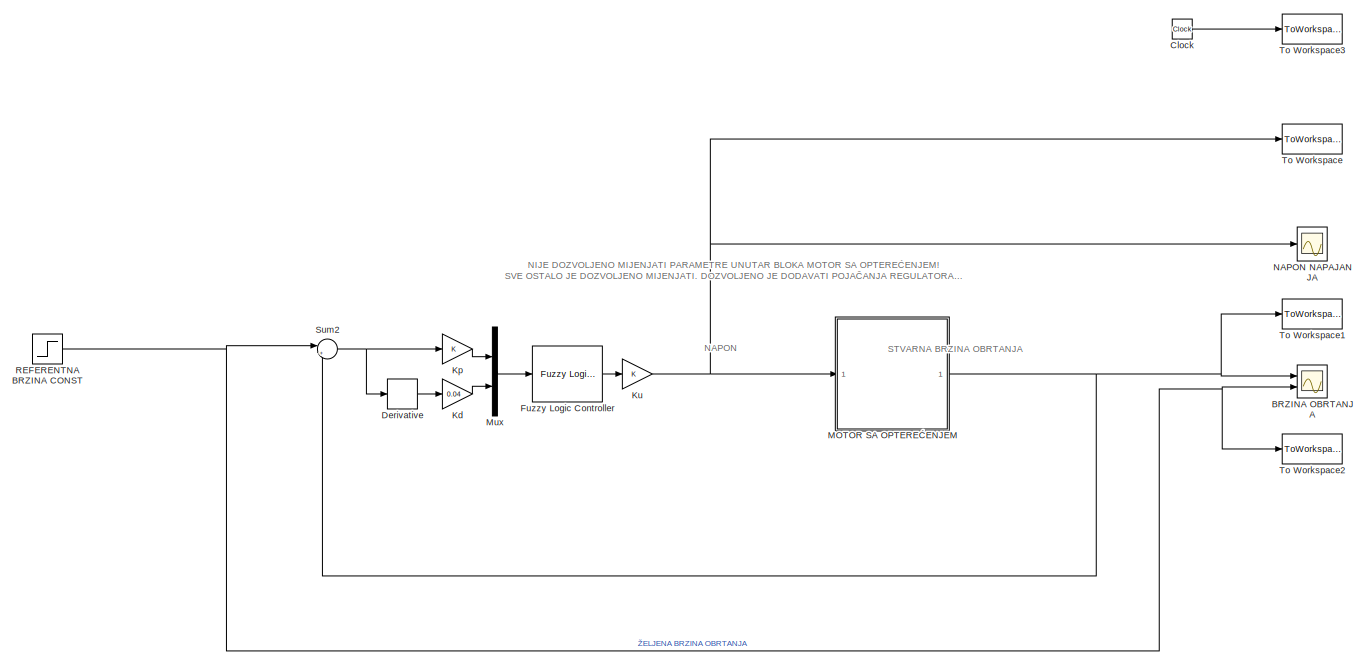
[diagram: root canvas - part 1/2, most of the canvas]
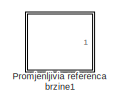
[diagram: root canvas - part 2/2, top left region]
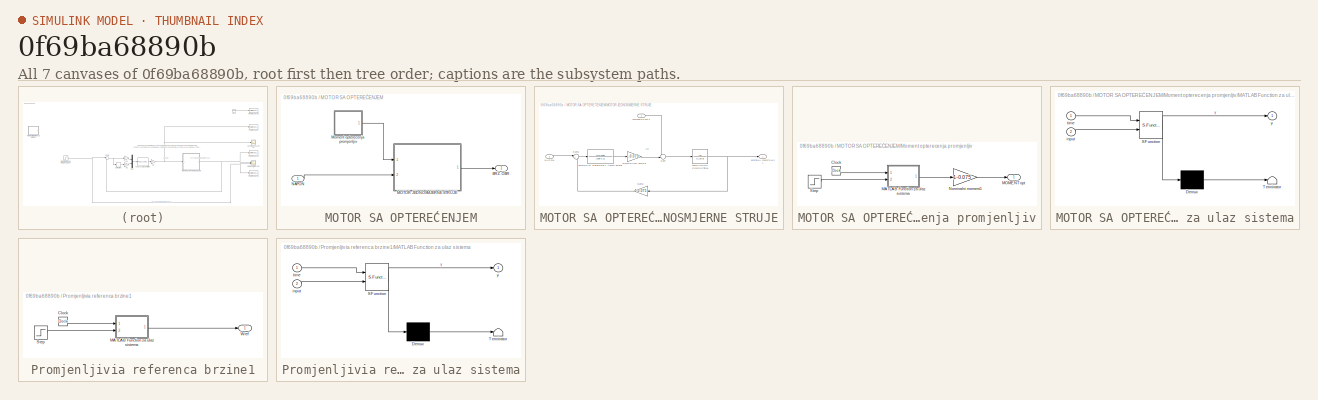
[diagram: thumbnail index - all 7 canvases of the model, root first then tree order]
MODEL slx_0f69ba68890b
KIND model
CONFIG AbsTol = auto
CONFIG EnableMultiTasking = off
CONFIG FixedStep = auto
CONFIG MaxStep = auto
CONFIG MinStep = auto
CONFIG RelTol = 1e-3
CONFIG SampleTimeConstraint = Unconstrained
CONFIG Solver = ode45
CONFIG SolverName = ode45
CONFIG StartTime = 0.0
CONFIG StopTime = 10.0
BLOCK [Scope] BRZINA OBRTANJA
  Floating = off
  NumInputPorts = 2
  Ports = [2]
  ScopeSpecificationString = Simulink.scopes.TimeScopeBlockCfg('CurrentConfiguration', extmgr.ConfigurationSet(extmgr.Configuration('Core','General UI',true),extmgr.Configuration('Core','Source UI',true),extmgr.Configuration('Sources','WiredSimulink',true,'DataLoggingSaveFormat','StructureWithTime','DataLoggingDecimation','1','DataLoggingDecimateData',true),extmgr.Configuration('Visuals','Time Domain',true,'SerializedDisplays...<+2212ch>
BLOCK [Clock] Clock
BLOCK [Derivative] Derivative
BLOCK [Reference] Fuzzy Logic Controller  REF=fuzblock/Fuzzy Logic   (lib defined in mdl_858b3b3e7478)
Controller
  Ports = [1, 1]
  SourceBlock = fuzblock/Fuzzy Logic \nController
  SourceProductBaseCode = FL
  SourceProductName = Fuzzy Logic Toolbox
  SourceType = Fuzzy Inference System
BLOCK [Gain] Kd
  Gain = 0.04
  OutDataTypeStr = Inherit: Inherit via internal rule
  ParamDataTypeStr = Inherit: Inherit via internal rule
  SaturateOnIntegerOverflow = off
BLOCK [Gain] Kp
  OutDataTypeStr = Inherit: Inherit via internal rule
  ParamDataTypeStr = Inherit: Inherit via internal rule
  SaturateOnIntegerOverflow = off
BLOCK [Gain] Ku
  OutDataTypeStr = Inherit: Inherit via internal rule
  ParamDataTypeStr = Inherit: Inherit via internal rule
  SaturateOnIntegerOverflow = off
BLOCK [SubSystem] MOTOR SA OPTEREĆENJEM
  Ports = [1, 1]
  RequestExecContextInheritance = off
BLOCK [Outport] MOTOR SA OPTEREĆENJEM/BRZ. OBR.
  IconDisplay = Port number
BLOCK [SubSystem] MOTOR SA OPTEREĆENJEM/MOTOR JEDNOSMJERNE STRUJE
  Ports = [2, 1]
  RequestExecContextInheritance = off
BLOCK [Outport] MOTOR SA OPTEREĆENJEM/MOTOR JEDNOSMJERNE STRUJE/BRZINA OBRTANJA
  IconDisplay = Port number
BLOCK [TransferFcn] MOTOR SA OPTEREĆENJEM/MOTOR JEDNOSMJERNE STRUJE/FUNKCIJA PRENOSA ARMATURE
  Denominator = [30e-3 1]
  Numerator = [1/0.075]
BLOCK [Gain] MOTOR SA OPTEREĆENJEM/MOTOR JEDNOSMJERNE STRUJE/Gain1
  Gain = 1-0.075
  OutDataTypeStr = Inherit: Inherit via internal rule
  ParamDataTypeStr = Inherit: Inherit via internal rule
  SaturateOnIntegerOverflow = off
BLOCK [TransferFcn] MOTOR SA OPTEREĆENJEM/MOTOR JEDNOSMJERNE STRUJE/MEHANICKI PODSISTEM
  Denominator = [1.29 0]
BLOCK [Inport] MOTOR SA OPTEREĆENJEM/MOTOR JEDNOSMJERNE STRUJE/MOMENT OPT
  IconDisplay = Port number
BLOCK [Inport] MOTOR SA OPTEREĆENJEM/MOTOR JEDNOSMJERNE STRUJE/NAPON
  IconDisplay = Port number
  Port = 2
BLOCK [Gain] MOTOR SA OPTEREĆENJEM/MOTOR JEDNOSMJERNE STRUJE/NOMINALNI FLUKS
  Gain = 1-0.075
  OutDataTypeStr = Inherit: Inherit via internal rule
  ParamDataTypeStr = Inherit: Inherit via internal rule
  SaturateOnIntegerOverflow = off
BLOCK [Sum] MOTOR SA OPTEREĆENJEM/MOTOR JEDNOSMJERNE STRUJE/Sum
  IconShape = round
  InputSameDT = off
  Inputs = -+|
  OutDataTypeStr = Inherit: Inherit via internal rule
  Ports = [2, 1]
  SaturateOnIntegerOverflow = off
BLOCK [Sum] MOTOR SA OPTEREĆENJEM/MOTOR JEDNOSMJERNE STRUJE/Sum1
  IconShape = round
  InputSameDT = off
  Inputs = |+-
  OutDataTypeStr = Inherit: Inherit via internal rule
  Ports = [2, 1]
  SaturateOnIntegerOverflow = off
BLOCK [SubSystem] MOTOR SA OPTEREĆENJEM/Moment opterecenja promjenljiv
  Ports = [0, 1]
  RequestExecContextInheritance = off
BLOCK [Clock] MOTOR SA OPTEREĆENJEM/Moment opterecenja promjenljiv/Clock
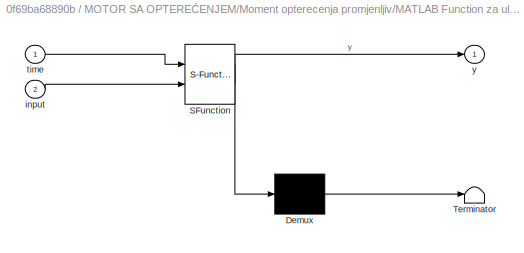
BLOCK [SubSystem] MOTOR SA OPTEREĆENJEM/Moment opterecenja promjenljiv/MATLAB Function za ulaz sistema
  ErrorFcn = Stateflow.Translate.translate
  PermitHierarchicalResolution = ExplicitOnly
  Ports = [2, 1]
  RequestExecContextInheritance = off
  SFBlockType = MATLAB Function
  TreatAsAtomicUnit = on
BLOCK [Demux] MOTOR SA OPTEREĆENJEM/Moment opterecenja promjenljiv/MATLAB Function za ulaz sistema/ Demux 
  Outputs = 1
  Ports = [1, 1]
BLOCK [S-Function] MOTOR SA OPTEREĆENJEM/Moment opterecenja promjenljiv/MATLAB Function za ulaz sistema/ SFunction 
  EnableBusSupport = on
  FunctionName = sf_sfun
  PortCounts = [2 2]
  Ports = [2, 2]
  SFcnIsStateOwnerBlock = off
  SFunctionDeploymentMode = off
  Tag = Stateflow S-Function simulacija 4
BLOCK [Terminator] MOTOR SA OPTEREĆENJEM/Moment opterecenja promjenljiv/MATLAB Function za ulaz sistema/ Terminator 
BLOCK [Inport] MOTOR SA OPTEREĆENJEM/Moment opterecenja promjenljiv/MATLAB Function za ulaz sistema/input
  IconDisplay = Port number
  Port = 2
BLOCK [Inport] MOTOR SA OPTEREĆENJEM/Moment opterecenja promjenljiv/MATLAB Function za ulaz sistema/time
  IconDisplay = Port number
BLOCK [Outport] MOTOR SA OPTEREĆENJEM/Moment opterecenja promjenljiv/MATLAB Function za ulaz sistema/y
  IconDisplay = Port number
BLOCK [Outport] MOTOR SA OPTEREĆENJEM/Moment opterecenja promjenljiv/MOMENT opt
  IconDisplay = Port number
BLOCK [Gain] MOTOR SA OPTEREĆENJEM/Moment opterecenja promjenljiv/Nominalni moment1
  Gain = 1-0.075
  OutDataTypeStr = Inherit: Inherit via internal rule
  ParamDataTypeStr = Inherit: Inherit via internal rule
  SaturateOnIntegerOverflow = off
BLOCK [Step] MOTOR SA OPTEREĆENJEM/Moment opterecenja promjenljiv/Step
  SampleTime = 0
  Time = 0
BLOCK [Inport] MOTOR SA OPTEREĆENJEM/NAPON
  IconDisplay = Port number
BLOCK [Mux] Mux
  DisplayOption = bar
  Inputs = 2
  Ports = [2, 1]
BLOCK [Scope] NAPON NAPAJANJA
  Floating = off
  NumInputPorts = 1
  Ports = [1]
  ScopeSpecificationString = Simulink.scopes.TimeScopeBlockCfg('CurrentConfiguration', extmgr.ConfigurationSet(extmgr.Configuration('Core','General UI',true,'FigureColor',[0.156862745098039 0.156862745098039 0.156862745098039]),extmgr.Configuration('Core','Source UI',true),extmgr.Configuration('Sources','WiredSimulink',true,'DataLoggingVariableName','ScopeData1','DataLoggingSaveFormat','StructureWithTime','DataLoggingDecimati...<+3122ch>
BLOCK [SubSystem] Promjenljivia referenca brzine1
  Ports = [0, 1]
  RequestExecContextInheritance = off
BLOCK [Clock] Promjenljivia referenca brzine1/Clock
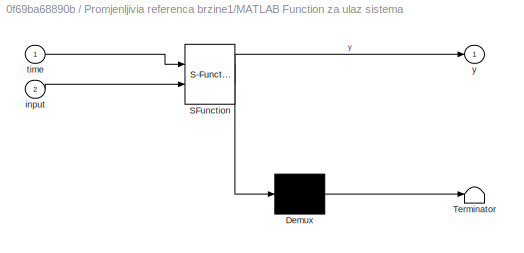
BLOCK [SubSystem] Promjenljivia referenca brzine1/MATLAB Function za ulaz sistema
  ErrorFcn = Stateflow.Translate.translate
  PermitHierarchicalResolution = ExplicitOnly
  Ports = [2, 1]
  RequestExecContextInheritance = off
  SFBlockType = MATLAB Function
  TreatAsAtomicUnit = on
BLOCK [Demux] Promjenljivia referenca brzine1/MATLAB Function za ulaz sistema/ Demux 
  Outputs = 1
  Ports = [1, 1]
BLOCK [S-Function] Promjenljivia referenca brzine1/MATLAB Function za ulaz sistema/ SFunction 
  EnableBusSupport = on
  FunctionName = sf_sfun
  PortCounts = [2 2]
  Ports = [2, 2]
  SFcnIsStateOwnerBlock = off
  SFunctionDeploymentMode = off
  Tag = Stateflow S-Function simulacija 1
BLOCK [Terminator] Promjenljivia referenca brzine1/MATLAB Function za ulaz sistema/ Terminator 
BLOCK [Inport] Promjenljivia referenca brzine1/MATLAB Function za ulaz sistema/input
  IconDisplay = Port number
  Port = 2
BLOCK [Inport] Promjenljivia referenca brzine1/MATLAB Function za ulaz sistema/time
  IconDisplay = Port number
BLOCK [Outport] Promjenljivia referenca brzine1/MATLAB Function za ulaz sistema/y
  IconDisplay = Port number
BLOCK [Step] Promjenljivia referenca brzine1/Step
  SampleTime = 0
  Time = 0
BLOCK [Outport] Promjenljivia referenca brzine1/Wref
  IconDisplay = Port number
BLOCK [Step] REFERENTNA BRZINA CONST
  After = 0.1
  SampleTime = 0
  Time = 4
BLOCK [Sum] Sum2
  IconShape = round
  InputSameDT = off
  Inputs = |+-
  OutDataTypeStr = Inherit: Inherit via internal rule
  Ports = [2, 1]
  SaturateOnIntegerOverflow = off
BLOCK [ToWorkspace] To Workspace
  FixptAsFi = on
  MaxDataPoints = inf
  Ports = [1]
  SampleTime = -1
  Save2DSignal = 3-D array (concatenate along third dimension)
  VariableName = napon
BLOCK [ToWorkspace] To Workspace1
  FixptAsFi = on
  MaxDataPoints = inf
  Ports = [1]
  SampleTime = -1
  Save2DSignal = 3-D array (concatenate along third dimension)
  VariableName = stvarna_brzina
BLOCK [ToWorkspace] To Workspace2
  FixptAsFi = on
  MaxDataPoints = inf
  Ports = [1]
  SampleTime = -1
  Save2DSignal = 3-D array (concatenate along third dimension)
  VariableName = zeljena_brzina
BLOCK [ToWorkspace] To Workspace3
  FixptAsFi = on
  MaxDataPoints = inf
  Ports = [1]
  SampleTime = -1
  Save2DSignal = 3-D array (concatenate along third dimension)
  VariableName = vrijeme
ANNOTATION (root): NIJE DOZVOLJENO MIJENJATI PARAMETRE UNUTAR BLOKA MOTOR SA OPTEREĆENJEM ! SVE OSTALO JE DOZVOLJENO MIJENJATI. DOZVOLJENO JE DODAVATI POJAČANJA REGULATORA PO POTREBI.
ANNOTATION (root): NAPON
ANNOTATION (root): STVARNA BRZINA OBRTANJA
ANNOTATION MOTOR SA OPTEREĆENJEM/MOTOR JEDNOSMJERNE STRUJE: Me
LINE Clock:1 -> To Workspace3:1
LINE Derivative:1 -> Kd:1
LINE Fuzzy Logic Controller:1 -> Ku:1
LINE Kd:1 -> Mux:2
LINE Kp:1 -> Mux:1
NET Ku:1 -> MOTOR SA OPTEREĆENJEM:1, NAPON NAPAJANJA:1, To Workspace:1
LINE MOTOR SA OPTEREĆENJEM/MOTOR JEDNOSMJERNE STRUJE/FUNKCIJA PRENOSA ARMATURE:1 -> MOTOR SA OPTEREĆENJEM/MOTOR JEDNOSMJERNE STRUJE/NOMINALNI FLUKS:1
LINE MOTOR SA OPTEREĆENJEM/MOTOR JEDNOSMJERNE STRUJE/Gain1:1 -> MOTOR SA OPTEREĆENJEM/MOTOR JEDNOSMJERNE STRUJE/Sum1:2
NET MOTOR SA OPTEREĆENJEM/MOTOR JEDNOSMJERNE STRUJE/MEHANICKI PODSISTEM:1 -> MOTOR SA OPTEREĆENJEM/MOTOR JEDNOSMJERNE STRUJE/BRZINA OBRTANJA:1, MOTOR SA OPTEREĆENJEM/MOTOR JEDNOSMJERNE STRUJE/Gain1:1
LINE MOTOR SA OPTEREĆENJEM/MOTOR JEDNOSMJERNE STRUJE/MOMENT OPT:1 -> MOTOR SA OPTEREĆENJEM/MOTOR JEDNOSMJERNE STRUJE/Sum:1
LINE MOTOR SA OPTEREĆENJEM/MOTOR JEDNOSMJERNE STRUJE/NAPON:1 -> MOTOR SA OPTEREĆENJEM/MOTOR JEDNOSMJERNE STRUJE/Sum1:1
LINE MOTOR SA OPTEREĆENJEM/MOTOR JEDNOSMJERNE STRUJE/NOMINALNI FLUKS:1 -> MOTOR SA OPTEREĆENJEM/MOTOR JEDNOSMJERNE STRUJE/Sum:2
LINE MOTOR SA OPTEREĆENJEM/MOTOR JEDNOSMJERNE STRUJE/Sum1:1 -> MOTOR SA OPTEREĆENJEM/MOTOR JEDNOSMJERNE STRUJE/FUNKCIJA PRENOSA ARMATURE:1
LINE MOTOR SA OPTEREĆENJEM/MOTOR JEDNOSMJERNE STRUJE/Sum:1 -> MOTOR SA OPTEREĆENJEM/MOTOR JEDNOSMJERNE STRUJE/MEHANICKI PODSISTEM:1
LINE MOTOR SA OPTEREĆENJEM/MOTOR JEDNOSMJERNE STRUJE:1 -> MOTOR SA OPTEREĆENJEM/BRZ. OBR.:1
LINE MOTOR SA OPTEREĆENJEM/Moment opterecenja promjenljiv/Clock:1 -> MOTOR SA OPTEREĆENJEM/Moment opterecenja promjenljiv/MATLAB Function za ulaz sistema:1
LINE MOTOR SA OPTEREĆENJEM/Moment opterecenja promjenljiv/MATLAB Function za ulaz sistema:1 -> MOTOR SA OPTEREĆENJEM/Moment opterecenja promjenljiv/Nominalni moment1:1
LINE MOTOR SA OPTEREĆENJEM/Moment opterecenja promjenljiv/Nominalni moment1:1 -> MOTOR SA OPTEREĆENJEM/Moment opterecenja promjenljiv/MOMENT opt:1
LINE MOTOR SA OPTEREĆENJEM/Moment opterecenja promjenljiv/Step:1 -> MOTOR SA OPTEREĆENJEM/Moment opterecenja promjenljiv/MATLAB Function za ulaz sistema:2
LINE MOTOR SA OPTEREĆENJEM/Moment opterecenja promjenljiv:1 -> MOTOR SA OPTEREĆENJEM/MOTOR JEDNOSMJERNE STRUJE:1
LINE MOTOR SA OPTEREĆENJEM/NAPON:1 -> MOTOR SA OPTEREĆENJEM/MOTOR JEDNOSMJERNE STRUJE:2
NET MOTOR SA OPTEREĆENJEM:1 -> BRZINA OBRTANJA:1, Sum2:2, To Workspace1:1
LINE Mux:1 -> Fuzzy Logic Controller:1
LINE Promjenljivia referenca brzine1/Clock:1 -> Promjenljivia referenca brzine1/MATLAB Function za ulaz sistema:1
LINE Promjenljivia referenca brzine1/MATLAB Function za ulaz sistema:1 -> Promjenljivia referenca brzine1/Wref:1
LINE Promjenljivia referenca brzine1/Step:1 -> Promjenljivia referenca brzine1/MATLAB Function za ulaz sistema:2
NET REFERENTNA BRZINA CONST:1 -> BRZINA OBRTANJA:2, Sum2:1, To Workspace2:1
NET Sum2:1 -> Derivative:1, Kp:1
note: NET lines group one-source signal fan-out (src -> all destinations, sorted); 1:1 wires keep LINE
CHART Promjenljivia referenca brzine1/MATLAB Function za ulaz sistema states=1 transitions=1
  STATE_LABEL 'eML_blk_kernel()'
  STATE_LABEL 'SCRIPT:\nfunction y = fcn(time, input)\nu = input;\n\nif(time >= 0 && time < 2)\n    u = u*0.2;\nend\nif(time >= 2 && time < 4)\n    u = u*0.5;\nend\nif(time >= 4 && time < 6)\n    u = 0.7*u;\nend\nif(time >= 6)\n    u = 1*u;\nend\ny = u;'
CHART MOTOR SA OPTEREĆENJEM/Moment opterecenja promjenljiv/MATLAB Function za ulaz sistema states=1 transitions=1
  STATE_LABEL 'eML_blk_kernel()'
  STATE_LABEL 'SCRIPT:\nfunction y = fcn(time, input)\nu = input;\n\nif(time >= 0 && time < 2)\n    u = u*0.2;\nend\nif(time >= 2 && time < 4)\n    u = u*0.5;\nend\nif(time >= 4 && time < 6)\n    u = 0.7*u;\nend\nif(time >= 6)\n    u = 1*u;\nend\ny = u;'
